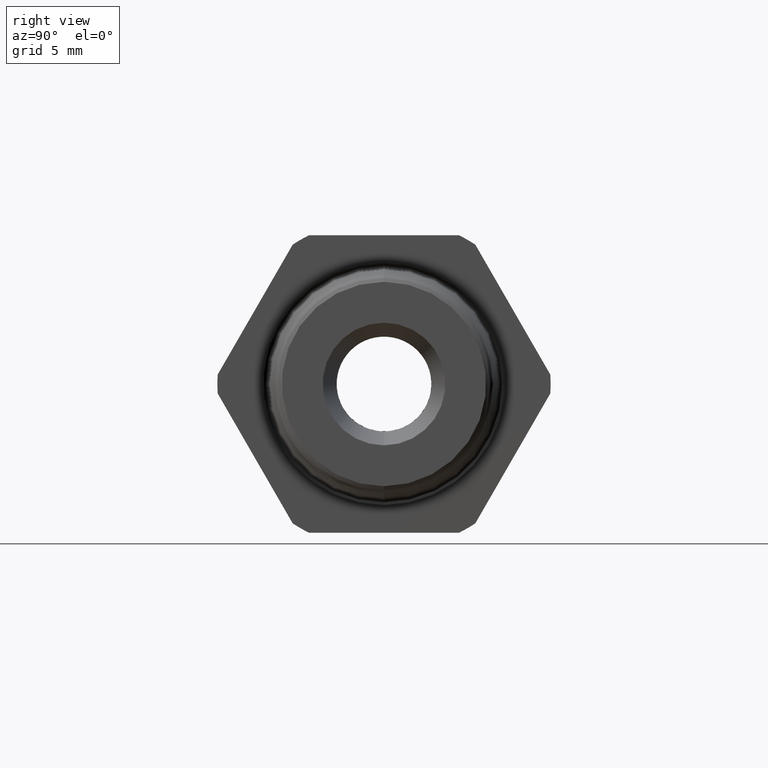
[diagram: clean part render]
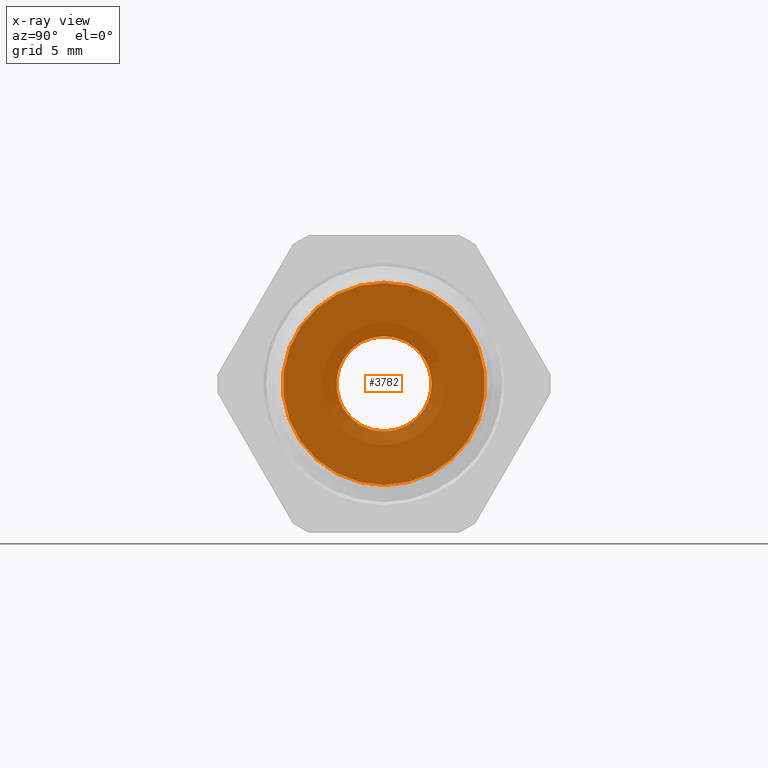
[diagram: x-ray — body ghosted, one internal face saturated and labeled with its STEP entity id]
A machine part, right view, then the same camera in x-ray: the body is ghosted and one INTERNAL B-rep face — a face not visible from any outside direction — is saturated and labeled: STEP entity #3782.
In plain terms, the highlighted planar face has unit normal (1, 0, 0).
Its self-contained STEP definition (entity closure, byte-faithful):
#776 = CARTESIAN_POINT ( 'NONE',  ( -0.6937499999999999800, 3.122746202247062400E-017, -0.2550000000000000000 ) ) ;
#782 = CARTESIAN_POINT ( 'NONE',  ( -0.6937499999999999800, 1.469527624586852600E-017, -0.1199999999999999800 ) ) ;
#805 = DIRECTION ( 'NONE',  ( 0.0000000000000000000, 0.0000000000000000000, 1.000000000000000000 ) ) ;
#806 = DIRECTION ( 'NONE',  ( -1.000000000000000000, -0.0000000000000000000, -0.0000000000000000000 ) ) ;
#807 = CARTESIAN_POINT ( 'NONE',  ( -0.6937499999999999800, 0.0000000000000000000, 0.0000000000000000000 ) ) ;
#808 = AXIS2_PLACEMENT_3D ( 'NONE', #807, #806, #805 ) ;
#809 = CIRCLE ( 'NONE', #808, 0.1199999999999999800 ) ;
#814 = DIRECTION ( 'NONE',  ( 0.0000000000000000000, 0.0000000000000000000, 1.000000000000000000 ) ) ;
#815 = DIRECTION ( 'NONE',  ( -1.000000000000000000, -0.0000000000000000000, -0.0000000000000000000 ) ) ;
#816 = CARTESIAN_POINT ( 'NONE',  ( -0.6937499999999999800, 0.0000000000000000000, 0.0000000000000000000 ) ) ;
#817 = AXIS2_PLACEMENT_3D ( 'NONE', #816, #815, #814 ) ;
#818 = CIRCLE ( 'NONE', #817, 0.2550000000000000000 ) ;
#820 = CARTESIAN_POINT ( 'NONE',  ( -0.6937499999999999800, 0.0000000000000000000, 0.1199999999999999800 ) ) ;
#822 = CARTESIAN_POINT ( 'NONE',  ( -0.6937499999999999800, 0.0000000000000000000, 0.2550000000000000000 ) ) ;
#2186 = DIRECTION ( 'NONE',  ( 0.0000000000000000000, 0.0000000000000000000, -1.000000000000000000 ) ) ;
#2187 = DIRECTION ( 'NONE',  ( 1.000000000000000000, 0.0000000000000000000, 0.0000000000000000000 ) ) ;
#2188 = CARTESIAN_POINT ( 'NONE',  ( -0.6937499999999999800, 0.2550000000000000000, 0.0000000000000000000 ) ) ;
#2190 = AXIS2_PLACEMENT_3D ( 'NONE', #2188, #2187, #2186 ) ;
#2191 = PLANE ( 'NONE',  #2190 ) ;
#2192 = FACE_OUTER_BOUND ( 'NONE', #3797, .T. ) ;
#2193 = FACE_BOUND ( 'NONE', #3800, .T. ) ;
#2194 = DIRECTION ( 'NONE',  ( 0.0000000000000000000, 0.0000000000000000000, 1.000000000000000000 ) ) ;
#2195 = DIRECTION ( 'NONE',  ( -1.000000000000000000, -0.0000000000000000000, -0.0000000000000000000 ) ) ;
#2196 = CARTESIAN_POINT ( 'NONE',  ( -0.6937499999999999800, 0.0000000000000000000, 0.0000000000000000000 ) ) ;
#2197 = AXIS2_PLACEMENT_3D ( 'NONE', #2196, #2195, #2194 ) ;
#2198 = CIRCLE ( 'NONE', #2197, 0.1199999999999999800 ) ;
#2239 = DIRECTION ( 'NONE',  ( 0.0000000000000000000, 0.0000000000000000000, 1.000000000000000000 ) ) ;
#2240 = DIRECTION ( 'NONE',  ( -1.000000000000000000, -0.0000000000000000000, -0.0000000000000000000 ) ) ;
#2241 = CARTESIAN_POINT ( 'NONE',  ( -0.6937499999999999800, 0.0000000000000000000, 0.0000000000000000000 ) ) ;
#2242 = AXIS2_PLACEMENT_3D ( 'NONE', #2241, #2240, #2239 ) ;
#2243 = CIRCLE ( 'NONE', #2242, 0.2550000000000000000 ) ;
#2979 = VERTEX_POINT ( 'NONE', #782 ) ;
#2982 = VERTEX_POINT ( 'NONE', #776 ) ;
#2994 = VERTEX_POINT ( 'NONE', #822 ) ;
#2996 = VERTEX_POINT ( 'NONE', #820 ) ;
#3002 = EDGE_CURVE ( 'NONE', #2982, #2994, #818, .T. ) ;
#3004 = EDGE_CURVE ( 'NONE', #2979, #2996, #809, .T. ) ;
#3780 = EDGE_CURVE ( 'NONE', #2996, #2979, #2198, .T. ) ;
#3781 = ORIENTED_EDGE ( 'NONE', *, *, #3780, .F. ) ;
#3782 = ADVANCED_FACE ( 'NONE', ( #2193, #2192 ), #2191, .F. ) ;
#3786 = EDGE_CURVE ( 'NONE', #2994, #2982, #2243, .T. ) ;
#3797 = EDGE_LOOP ( 'NONE', ( #3811, #3809 ) ) ;
#3798 = ORIENTED_EDGE ( 'NONE', *, *, #3004, .F. ) ;
#3800 = EDGE_LOOP ( 'NONE', ( #3781, #3798 ) ) ;
#3809 = ORIENTED_EDGE ( 'NONE', *, *, #3002, .T. ) ;
#3811 = ORIENTED_EDGE ( 'NONE', *, *, #3786, .T. ) ;